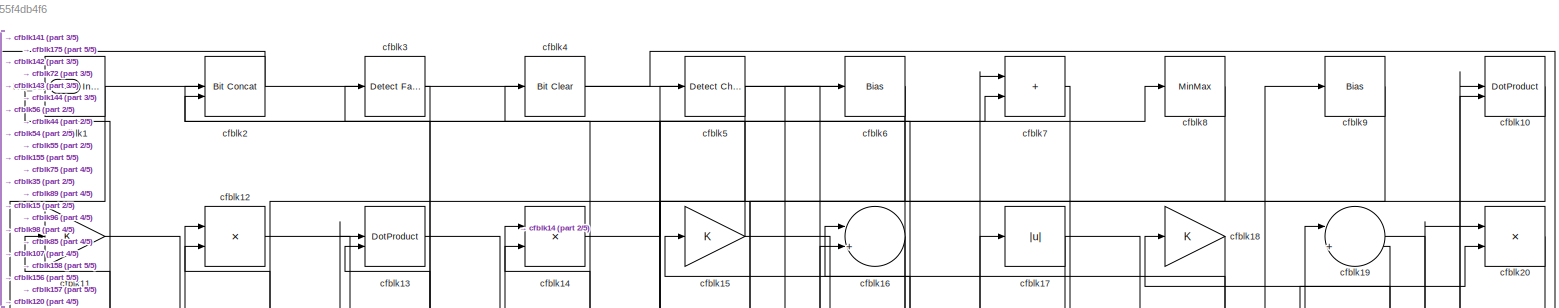
[diagram: root canvas - part 1/5, full width, top band]
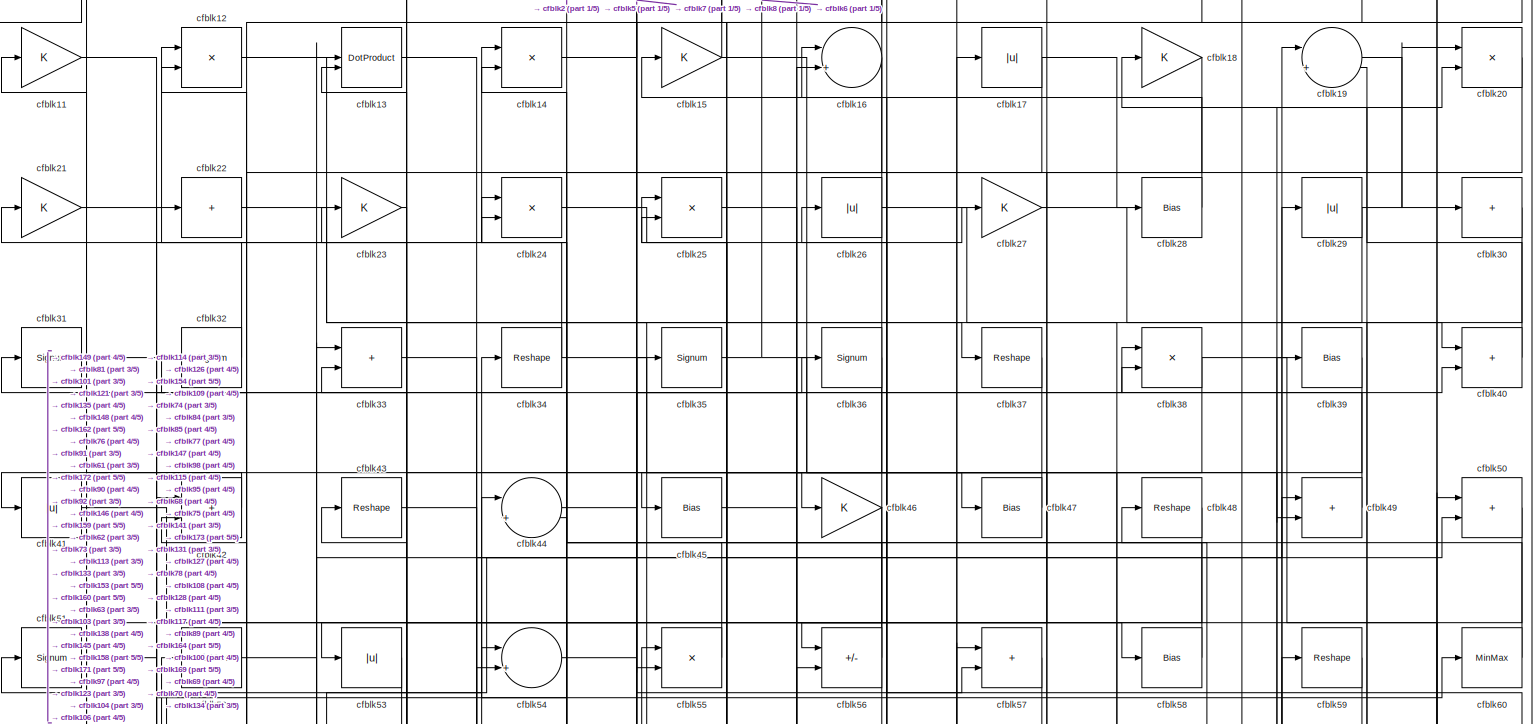
[diagram: root canvas - part 2/5, full width, top band]
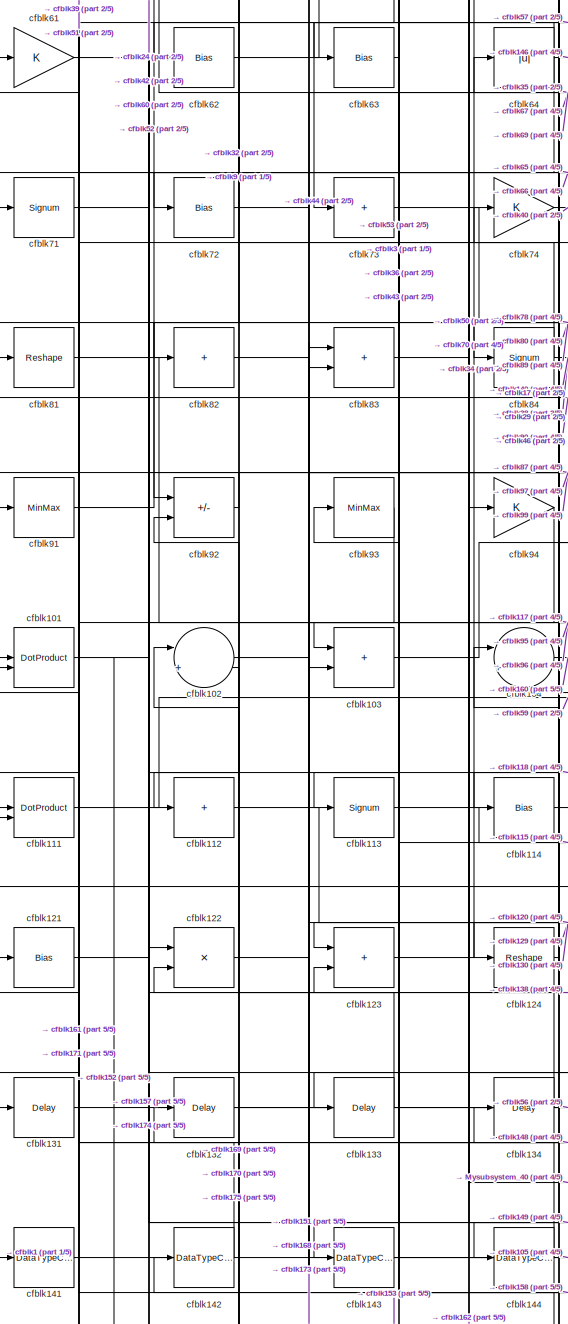
[diagram: root canvas - part 3/5, middle left region]
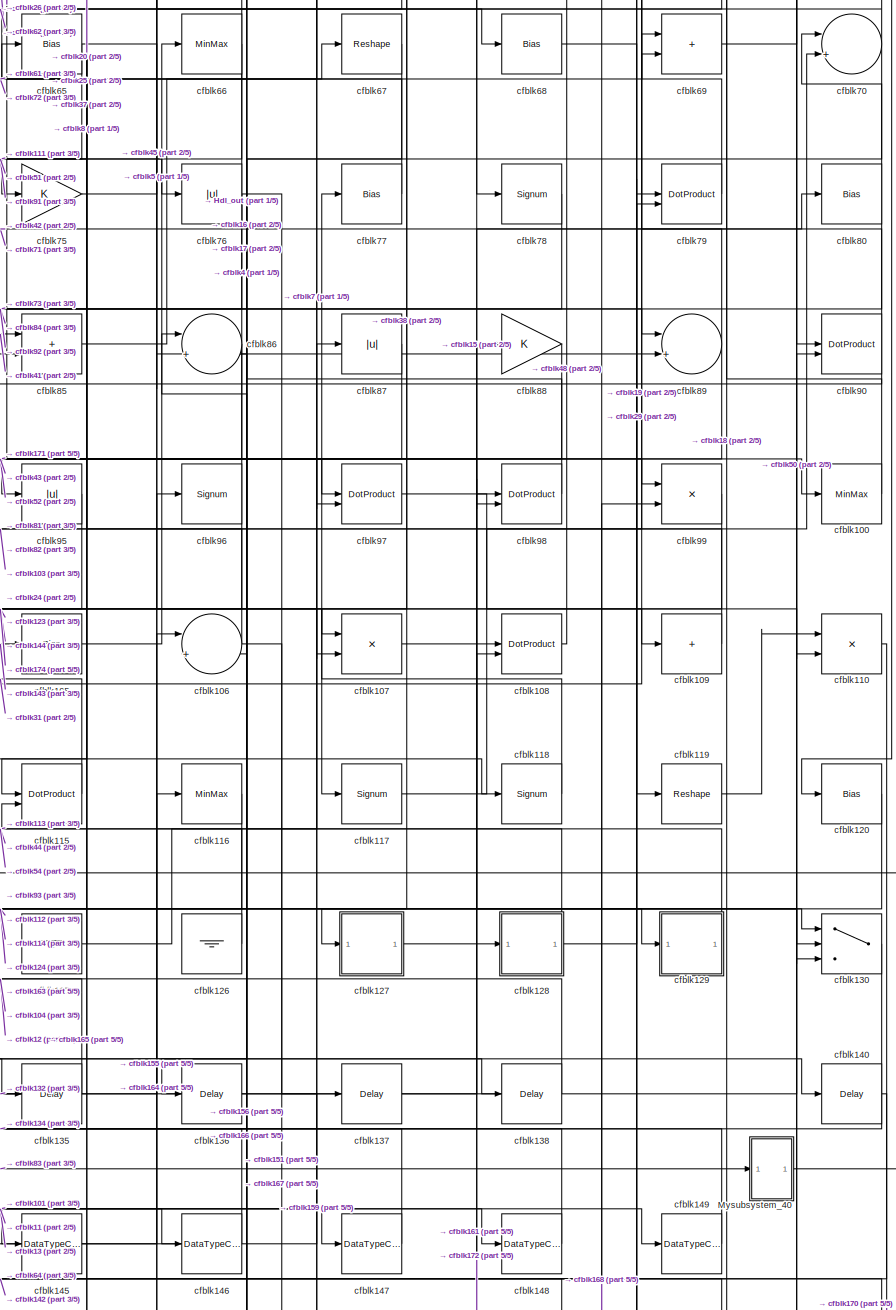
[diagram: root canvas - part 4/5, middle right region]
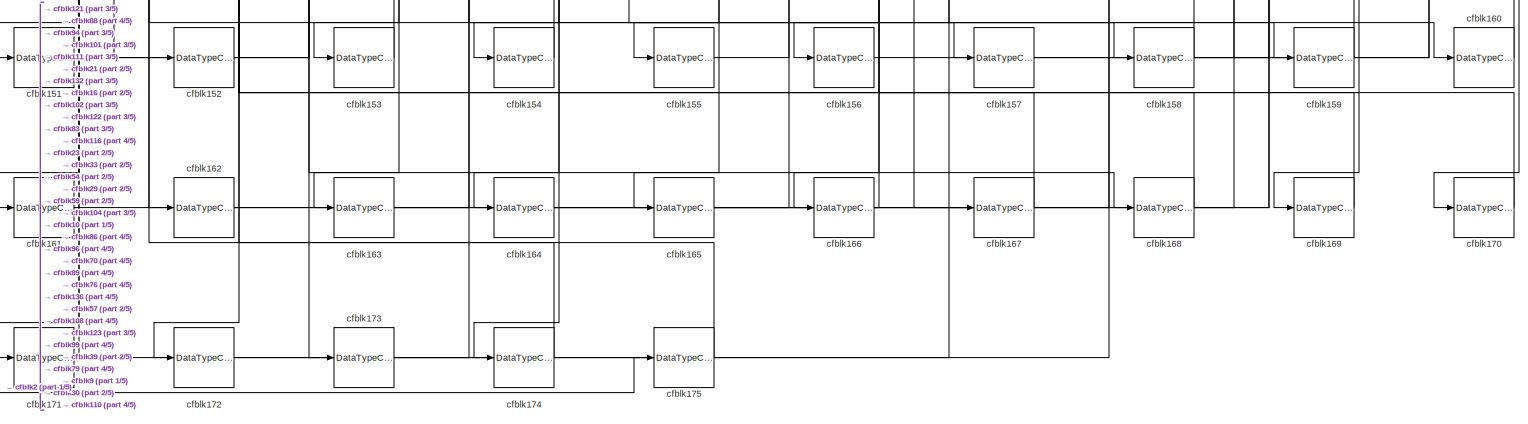
[diagram: root canvas - part 5/5, full width, bottom band]
MODEL slx_75555f4db4f6
KIND model
CONFIG AbsTol = auto
CONFIG EnableMultiTasking = off
CONFIG FixedStep = auto
CONFIG MaxStep = auto
CONFIG MinStep = auto
CONFIG RelTol = 1e-3
CONFIG SampleTimeConstraint = Unconstrained
CONFIG SolverName = VariableStepAuto
CONFIG StartTime = 0.0
CONFIG StopTime = 10.0
BLOCK [Outport] Hdl_out
  OutDataTypeStr = uint8
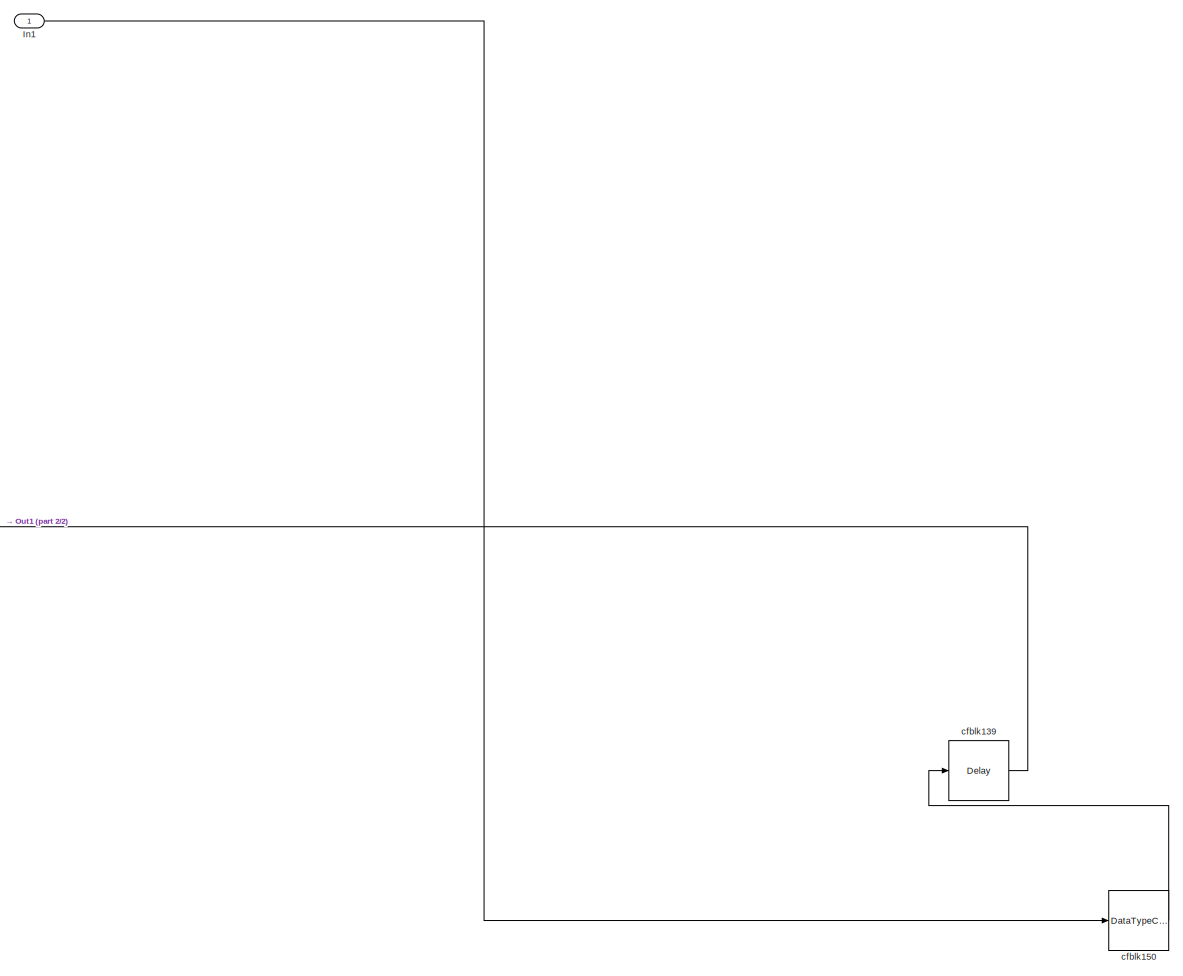
[diagram: Mysubsystem_40 - part 1/2, most of the canvas]
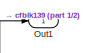
[diagram: Mysubsystem_40 - part 2/2, middle left region]
BLOCK [SubSystem] Mysubsystem_40
  RTWFcnName = Mysubsystem_40
  RTWFcnNameOpts = User specified
  RTWFileNameOpts = Use function name
  RTWSystemCode = Reusable function
  TreatAsAtomicUnit = on
BLOCK [Inport] Mysubsystem_40/In1
BLOCK [Outport] Mysubsystem_40/Out1
BLOCK [Delay] Mysubsystem_40/cfblk139
  InputPortMap = u0
  SampleTime = 1
BLOCK [DataTypeConversion] Mysubsystem_40/cfblk150
  OutDataTypeStr = uint8
  RndMeth = Floor
  SaturateOnIntegerOverflow = off
BLOCK [Reference] cfblk1  REF=simulink/Logic and Bit
Operations/Detect
Increase
  LibrarySourceBlock = hdlsllib/Logic and Bit\nOperations/Detect\nIncrease
  SourceBlock = simulink/Logic and Bit\nOperations/Detect\nIncrease
  SourceType = Detect Increase
BLOCK [DotProduct] cfblk10
  OutDataTypeStr = uint8
BLOCK [MinMax] cfblk100
  OutDataTypeStr = uint8
BLOCK [DotProduct] cfblk101
  OutDataTypeStr = uint8
BLOCK [Sum] cfblk102
  Inputs = |++
  OutDataTypeStr = uint8
BLOCK [Sum] cfblk103
  IconShape = rectangular
  OutDataTypeStr = uint8
BLOCK [Sum] cfblk104
  Inputs = |++
  OutDataTypeStr = uint8
BLOCK [Bias] cfblk105
  Bias = 0.0
  SaturateOnIntegerOverflow = off
BLOCK [Sum] cfblk106
  Inputs = |++
  OutDataTypeStr = uint8
BLOCK [Product] cfblk107
  Inputs = */
  OutDataTypeStr = uint8
  RndMeth = Zero
  SaturateOnIntegerOverflow = on
BLOCK [DotProduct] cfblk108
  OutDataTypeStr = uint8
BLOCK [Sum] cfblk109
  IconShape = rectangular
  Inputs = +
  OutDataTypeStr = uint8
BLOCK [Gain] cfblk11
  OutDataTypeStr = uint8
BLOCK [Product] cfblk110
  Inputs = */
  OutDataTypeStr = uint8
  RndMeth = Zero
  SaturateOnIntegerOverflow = on
BLOCK [DotProduct] cfblk111
  OutDataTypeStr = uint8
BLOCK [Sum] cfblk112
  IconShape = rectangular
  Inputs = +
  OutDataTypeStr = uint8
BLOCK [Signum] cfblk113
BLOCK [Bias] cfblk114
  Bias = 0.0
  SaturateOnIntegerOverflow = off
BLOCK [DotProduct] cfblk115
  OutDataTypeStr = uint8
BLOCK [MinMax] cfblk116
  OutDataTypeStr = uint8
BLOCK [Signum] cfblk117
BLOCK [Signum] cfblk118
BLOCK [Reshape] cfblk119
BLOCK [Product] cfblk12
  Inputs = */
  OutDataTypeStr = uint8
  RndMeth = Zero
  SaturateOnIntegerOverflow = on
BLOCK [Bias] cfblk120
  Bias = 0.0
  SaturateOnIntegerOverflow = off
BLOCK [Bias] cfblk121
  Bias = 0.0
  SaturateOnIntegerOverflow = off
BLOCK [Product] cfblk122
  Inputs = */
  OutDataTypeStr = uint8
  RndMeth = Zero
  SaturateOnIntegerOverflow = on
BLOCK [Sum] cfblk123
  IconShape = rectangular
  OutDataTypeStr = uint8
BLOCK [Reshape] cfblk124
BLOCK [Ground] cfblk125
BLOCK [Ground] cfblk126
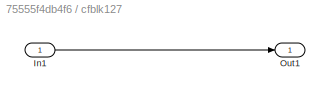
BLOCK [SubSystem] cfblk127
  LibrarySourceBlock = hdlsllib/Ports &\nSubsystems/Subsystem
BLOCK [Inport] cfblk127/In1
BLOCK [Outport] cfblk127/Out1
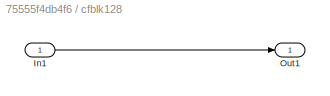
BLOCK [SubSystem] cfblk128
  LibrarySourceBlock = hdlsllib/Ports &\nSubsystems/Subsystem
BLOCK [Inport] cfblk128/In1
BLOCK [Outport] cfblk128/Out1
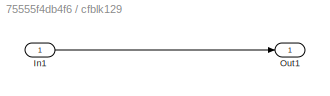
BLOCK [SubSystem] cfblk129
  LibrarySourceBlock = hdlsllib/Ports &\nSubsystems/Subsystem
BLOCK [Inport] cfblk129/In1
BLOCK [Outport] cfblk129/Out1
BLOCK [DotProduct] cfblk13
  OutDataTypeStr = uint8
BLOCK [Switch] cfblk130
  InputSameDT = off
  OutDataTypeStr = uint8
  SaturateOnIntegerOverflow = off
BLOCK [Delay] cfblk131
  InputPortMap = u0
  SampleTime = 1
BLOCK [Delay] cfblk132
  InputPortMap = u0
  SampleTime = 1
BLOCK [Delay] cfblk133
  InputPortMap = u0
  SampleTime = 1
BLOCK [Delay] cfblk134
  InputPortMap = u0
  SampleTime = 1
BLOCK [Delay] cfblk135
  InputPortMap = u0
  SampleTime = 1
BLOCK [Delay] cfblk136
  InputPortMap = u0
  SampleTime = 1
BLOCK [Delay] cfblk137
  InputPortMap = u0
  SampleTime = 1
BLOCK [Delay] cfblk138
  InputPortMap = u0
  SampleTime = 1
BLOCK [Product] cfblk14
  Inputs = */
  OutDataTypeStr = uint8
  RndMeth = Zero
  SaturateOnIntegerOverflow = on
BLOCK [Delay] cfblk140
  InputPortMap = u0
  SampleTime = 1
BLOCK [DataTypeConversion] cfblk141
  OutDataTypeStr = uint8
  RndMeth = Floor
  SaturateOnIntegerOverflow = off
BLOCK [DataTypeConversion] cfblk142
  OutDataTypeStr = uint8
  RndMeth = Floor
  SaturateOnIntegerOverflow = off
BLOCK [DataTypeConversion] cfblk143
  OutDataTypeStr = uint8
  RndMeth = Floor
  SaturateOnIntegerOverflow = off
BLOCK [DataTypeConversion] cfblk144
  OutDataTypeStr = uint8
  RndMeth = Floor
  SaturateOnIntegerOverflow = off
BLOCK [DataTypeConversion] cfblk145
  OutDataTypeStr = uint8
  RndMeth = Floor
  SaturateOnIntegerOverflow = off
BLOCK [DataTypeConversion] cfblk146
  OutDataTypeStr = uint8
  RndMeth = Floor
  SaturateOnIntegerOverflow = off
BLOCK [DataTypeConversion] cfblk147
  OutDataTypeStr = uint8
  RndMeth = Floor
  SaturateOnIntegerOverflow = off
BLOCK [DataTypeConversion] cfblk148
  OutDataTypeStr = uint8
  RndMeth = Floor
  SaturateOnIntegerOverflow = off
BLOCK [DataTypeConversion] cfblk149
  OutDataTypeStr = uint8
  RndMeth = Floor
  SaturateOnIntegerOverflow = off
BLOCK [Gain] cfblk15
  OutDataTypeStr = uint8
BLOCK [DataTypeConversion] cfblk151
  OutDataTypeStr = uint8
  RndMeth = Floor
  SaturateOnIntegerOverflow = off
BLOCK [DataTypeConversion] cfblk152
  OutDataTypeStr = uint8
  RndMeth = Floor
  SaturateOnIntegerOverflow = off
BLOCK [DataTypeConversion] cfblk153
  OutDataTypeStr = uint8
  RndMeth = Floor
  SaturateOnIntegerOverflow = off
BLOCK [DataTypeConversion] cfblk154
  OutDataTypeStr = uint8
  RndMeth = Floor
  SaturateOnIntegerOverflow = off
BLOCK [DataTypeConversion] cfblk155
  OutDataTypeStr = uint8
  RndMeth = Floor
  SaturateOnIntegerOverflow = off
BLOCK [DataTypeConversion] cfblk156
  OutDataTypeStr = uint8
  RndMeth = Floor
  SaturateOnIntegerOverflow = off
BLOCK [DataTypeConversion] cfblk157
  OutDataTypeStr = uint8
  RndMeth = Floor
  SaturateOnIntegerOverflow = off
BLOCK [DataTypeConversion] cfblk158
  OutDataTypeStr = uint8
  RndMeth = Floor
  SaturateOnIntegerOverflow = off
BLOCK [DataTypeConversion] cfblk159
  OutDataTypeStr = uint8
  RndMeth = Floor
  SaturateOnIntegerOverflow = off
BLOCK [Sum] cfblk16
  Inputs = |++
  OutDataTypeStr = uint8
BLOCK [DataTypeConversion] cfblk160
  OutDataTypeStr = uint8
  RndMeth = Floor
  SaturateOnIntegerOverflow = off
BLOCK [DataTypeConversion] cfblk161
  OutDataTypeStr = uint8
  RndMeth = Floor
  SaturateOnIntegerOverflow = off
BLOCK [DataTypeConversion] cfblk162
  OutDataTypeStr = uint8
  RndMeth = Floor
  SaturateOnIntegerOverflow = off
BLOCK [DataTypeConversion] cfblk163
  OutDataTypeStr = uint8
  RndMeth = Floor
  SaturateOnIntegerOverflow = off
BLOCK [DataTypeConversion] cfblk164
  OutDataTypeStr = uint8
  RndMeth = Floor
  SaturateOnIntegerOverflow = off
BLOCK [DataTypeConversion] cfblk165
  OutDataTypeStr = uint8
  RndMeth = Floor
  SaturateOnIntegerOverflow = off
BLOCK [DataTypeConversion] cfblk166
  OutDataTypeStr = uint8
  RndMeth = Floor
  SaturateOnIntegerOverflow = off
BLOCK [DataTypeConversion] cfblk167
  OutDataTypeStr = uint8
  RndMeth = Floor
  SaturateOnIntegerOverflow = off
BLOCK [DataTypeConversion] cfblk168
  OutDataTypeStr = uint8
  RndMeth = Floor
  SaturateOnIntegerOverflow = off
BLOCK [DataTypeConversion] cfblk169
  OutDataTypeStr = uint8
  RndMeth = Floor
  SaturateOnIntegerOverflow = off
BLOCK [Abs] cfblk17
  OutDataTypeStr = uint8
  SaturateOnIntegerOverflow = off
BLOCK [DataTypeConversion] cfblk170
  OutDataTypeStr = uint8
  RndMeth = Floor
  SaturateOnIntegerOverflow = off
BLOCK [DataTypeConversion] cfblk171
  OutDataTypeStr = uint8
  RndMeth = Floor
  SaturateOnIntegerOverflow = off
BLOCK [DataTypeConversion] cfblk172
  OutDataTypeStr = uint8
  RndMeth = Floor
  SaturateOnIntegerOverflow = off
BLOCK [DataTypeConversion] cfblk173
  OutDataTypeStr = uint8
  RndMeth = Floor
  SaturateOnIntegerOverflow = off
BLOCK [DataTypeConversion] cfblk174
  OutDataTypeStr = uint8
  RndMeth = Floor
  SaturateOnIntegerOverflow = off
BLOCK [DataTypeConversion] cfblk175
  OutDataTypeStr = uint8
  RndMeth = Floor
  SaturateOnIntegerOverflow = off
BLOCK [Gain] cfblk18
  OutDataTypeStr = uint8
BLOCK [Sum] cfblk19
  Inputs = |++
  OutDataTypeStr = uint8
BLOCK [Reference] cfblk2  REF=hdlsllib/Logic and Bit
Operations/Bit Concat
  SourceBlock = hdlsllib/Logic and Bit\nOperations/Bit Concat
  SourceType = Bit Concat
BLOCK [Product] cfblk20
  Inputs = */
  OutDataTypeStr = uint8
  RndMeth = Zero
  SaturateOnIntegerOverflow = on
BLOCK [Gain] cfblk21
  OutDataTypeStr = uint8
BLOCK [Sum] cfblk22
  IconShape = rectangular
  Inputs = +
  OutDataTypeStr = uint8
BLOCK [Gain] cfblk23
  OutDataTypeStr = uint8
BLOCK [Product] cfblk24
  Inputs = */
  OutDataTypeStr = uint8
  RndMeth = Zero
  SaturateOnIntegerOverflow = on
BLOCK [Product] cfblk25
  Inputs = */
  OutDataTypeStr = uint8
  RndMeth = Zero
  SaturateOnIntegerOverflow = on
BLOCK [Abs] cfblk26
  OutDataTypeStr = uint8
  SaturateOnIntegerOverflow = off
BLOCK [Gain] cfblk27
  OutDataTypeStr = uint8
BLOCK [Bias] cfblk28
  Bias = 0.0
  SaturateOnIntegerOverflow = off
BLOCK [Abs] cfblk29
  OutDataTypeStr = uint8
  SaturateOnIntegerOverflow = off
BLOCK [Reference] cfblk3  REF=hdlsllib/Logic and Bit
Operations/Detect Fall
Nonpositive
  SourceBlock = hdlsllib/Logic and Bit\nOperations/Detect Fall\nNonpositive
  SourceType = Detect Fall Nonpositive
BLOCK [Sum] cfblk30
  IconShape = rectangular
  Inputs = +
  OutDataTypeStr = uint8
BLOCK [Signum] cfblk31
BLOCK [Signum] cfblk32
BLOCK [Sum] cfblk33
  IconShape = rectangular
  OutDataTypeStr = uint8
BLOCK [Reshape] cfblk34
BLOCK [Signum] cfblk35
BLOCK [Signum] cfblk36
BLOCK [Reshape] cfblk37
BLOCK [Product] cfblk38
  Inputs = */
  OutDataTypeStr = uint8
  RndMeth = Zero
  SaturateOnIntegerOverflow = on
BLOCK [Bias] cfblk39
  Bias = 0.0
  SaturateOnIntegerOverflow = off
BLOCK [Reference] cfblk4  REF=simulink/Logic and Bit
Operations/Bit Clear
  LibrarySourceBlock = hdlsllib/Logic and Bit\nOperations/Bit Clear
  SourceBlock = simulink/Logic and Bit\nOperations/Bit Clear
  SourceType = Bit Clear
BLOCK [Sum] cfblk40
  IconShape = rectangular
  OutDataTypeStr = uint8
BLOCK [Abs] cfblk41
  OutDataTypeStr = uint8
  SaturateOnIntegerOverflow = off
BLOCK [Sum] cfblk42
  IconShape = rectangular
  OutDataTypeStr = uint8
BLOCK [Reshape] cfblk43
BLOCK [Sum] cfblk44
  Inputs = |++
  OutDataTypeStr = uint8
BLOCK [Bias] cfblk45
  Bias = 0.0
  SaturateOnIntegerOverflow = off
BLOCK [Gain] cfblk46
  OutDataTypeStr = uint8
BLOCK [Bias] cfblk47
  Bias = 0.0
  SaturateOnIntegerOverflow = off
BLOCK [Reshape] cfblk48
BLOCK [Sum] cfblk49
  IconShape = rectangular
  OutDataTypeStr = uint8
BLOCK [Reference] cfblk5  REF=simulink/Logic and Bit
Operations/Detect
Change
  LibrarySourceBlock = hdlsllib/Logic and Bit\nOperations/Detect\nChange
  SourceBlock = simulink/Logic and Bit\nOperations/Detect\nChange
  SourceType = Detect Change
BLOCK [Sum] cfblk50
  IconShape = rectangular
  OutDataTypeStr = uint8
BLOCK [Signum] cfblk51
BLOCK [MinMax] cfblk52
  OutDataTypeStr = uint8
BLOCK [Abs] cfblk53
  OutDataTypeStr = uint8
  SaturateOnIntegerOverflow = off
BLOCK [Sum] cfblk54
  Inputs = |++
  OutDataTypeStr = uint8
BLOCK [Product] cfblk55
  Inputs = */
  OutDataTypeStr = uint8
  RndMeth = Zero
  SaturateOnIntegerOverflow = on
BLOCK [Sum] cfblk56
  IconShape = rectangular
  Inputs = +-
  OutDataTypeStr = uint8
BLOCK [Sum] cfblk57
  IconShape = rectangular
  OutDataTypeStr = uint8
BLOCK [Bias] cfblk58
  Bias = 0.0
  SaturateOnIntegerOverflow = off
BLOCK [Reshape] cfblk59
BLOCK [Bias] cfblk6
  Bias = 0.0
  SaturateOnIntegerOverflow = off
BLOCK [MinMax] cfblk60
  OutDataTypeStr = uint8
BLOCK [Gain] cfblk61
  OutDataTypeStr = uint8
BLOCK [Bias] cfblk62
  Bias = 0.0
  SaturateOnIntegerOverflow = off
BLOCK [Bias] cfblk63
  Bias = 0.0
  SaturateOnIntegerOverflow = off
BLOCK [Abs] cfblk64
  OutDataTypeStr = uint8
  SaturateOnIntegerOverflow = off
BLOCK [Bias] cfblk65
  Bias = 0.0
  SaturateOnIntegerOverflow = off
BLOCK [MinMax] cfblk66
  OutDataTypeStr = uint8
BLOCK [Reshape] cfblk67
BLOCK [Bias] cfblk68
  Bias = 0.0
  SaturateOnIntegerOverflow = off
BLOCK [Sum] cfblk69
  IconShape = rectangular
  OutDataTypeStr = uint8
BLOCK [Sum] cfblk7
  IconShape = rectangular
  OutDataTypeStr = uint8
BLOCK [Sum] cfblk70
  Inputs = |++
  OutDataTypeStr = uint8
BLOCK [Signum] cfblk71
BLOCK [Bias] cfblk72
  Bias = 0.0
  SaturateOnIntegerOverflow = off
BLOCK [Sum] cfblk73
  IconShape = rectangular
  Inputs = +
  OutDataTypeStr = uint8
BLOCK [Gain] cfblk74
  OutDataTypeStr = uint8
BLOCK [Gain] cfblk75
  OutDataTypeStr = uint8
BLOCK [Abs] cfblk76
  OutDataTypeStr = uint8
  SaturateOnIntegerOverflow = off
BLOCK [Bias] cfblk77
  Bias = 0.0
  SaturateOnIntegerOverflow = off
BLOCK [Signum] cfblk78
BLOCK [DotProduct] cfblk79
  OutDataTypeStr = uint8
BLOCK [MinMax] cfblk8
  OutDataTypeStr = uint8
BLOCK [Bias] cfblk80
  Bias = 0.0
  SaturateOnIntegerOverflow = off
BLOCK [Reshape] cfblk81
BLOCK [Sum] cfblk82
  IconShape = rectangular
  Inputs = +
  OutDataTypeStr = uint8
BLOCK [Sum] cfblk83
  IconShape = rectangular
  OutDataTypeStr = uint8
BLOCK [Signum] cfblk84
BLOCK [Sum] cfblk85
  IconShape = rectangular
  OutDataTypeStr = uint8
BLOCK [Sum] cfblk86
  Inputs = |++
  OutDataTypeStr = uint8
BLOCK [Abs] cfblk87
  OutDataTypeStr = uint8
  SaturateOnIntegerOverflow = off
BLOCK [Gain] cfblk88
  OutDataTypeStr = uint8
BLOCK [Sum] cfblk89
  Inputs = |++
  OutDataTypeStr = uint8
BLOCK [Bias] cfblk9
  Bias = 0.0
  SaturateOnIntegerOverflow = off
BLOCK [DotProduct] cfblk90
  OutDataTypeStr = uint8
BLOCK [MinMax] cfblk91
  OutDataTypeStr = uint8
BLOCK [Sum] cfblk92
  IconShape = rectangular
  Inputs = +-
  OutDataTypeStr = uint8
BLOCK [MinMax] cfblk93
  OutDataTypeStr = uint8
BLOCK [Gain] cfblk94
  OutDataTypeStr = uint8
BLOCK [Abs] cfblk95
  OutDataTypeStr = uint8
  SaturateOnIntegerOverflow = off
BLOCK [Signum] cfblk96
BLOCK [DotProduct] cfblk97
  OutDataTypeStr = uint8
BLOCK [DotProduct] cfblk98
  OutDataTypeStr = uint8
BLOCK [Product] cfblk99
  Inputs = */
  OutDataTypeStr = uint8
  RndMeth = Zero
  SaturateOnIntegerOverflow = on
LINE Mysubsystem_40/In1:1 -> Mysubsystem_40/cfblk150:1
LINE Mysubsystem_40/cfblk139:1 -> Mysubsystem_40/Out1:1
LINE Mysubsystem_40/cfblk150:1 -> Mysubsystem_40/cfblk139:1
LINE Mysubsystem_40:1 -> cfblk101:1
LINE cfblk100:1 -> cfblk18:1
NET cfblk101:1 -> cfblk149:1, cfblk152:1, cfblk24:2
LINE cfblk102:1 -> cfblk168:1
NET cfblk103:1 -> cfblk50:2, cfblk70:2
LINE cfblk104:1 -> cfblk160:1
LINE cfblk105:1 -> cfblk66:1
NET cfblk106:1 -> cfblk137:1, cfblk24:1
LINE cfblk107:1 -> cfblk130:2
LINE cfblk108:1 -> cfblk48:1
LINE cfblk109:1 -> cfblk25:2
LINE cfblk10:1 -> cfblk155:1
LINE cfblk110:1 -> cfblk170:1
NET cfblk111:1 -> cfblk157:1, cfblk59:1
LINE cfblk112:1 -> cfblk130:1
LINE cfblk113:1 -> cfblk115:2
NET cfblk114:1 -> cfblk130:3, cfblk74:1
LINE cfblk115:1 -> cfblk31:1
LINE cfblk116:1 -> cfblk163:1
NET cfblk117:1 -> cfblk29:1, cfblk80:1
LINE cfblk118:1 -> cfblk77:1
LINE cfblk119:1 -> cfblk110:1
LINE cfblk11:1 -> cfblk148:1
LINE cfblk120:1 -> cfblk124:1
NET cfblk121:1 -> cfblk36:1, cfblk60:1
LINE cfblk122:1 -> cfblk173:1
LINE cfblk123:1 -> cfblk34:1
LINE cfblk124:1 -> cfblk64:1
NET cfblk125:1 -> cfblk65:1, cfblk87:1
NET cfblk126:1 -> cfblk44:2, cfblk54:1
LINE cfblk127/In1:1 -> cfblk127/Out1:1
LINE cfblk127:1 -> cfblk128:1
LINE cfblk128/In1:1 -> cfblk128/Out1:1
NET cfblk128:1 -> cfblk16:1, cfblk20:2
LINE cfblk129/In1:1 -> cfblk129/Out1:1
LINE cfblk129:1 -> cfblk93:1
LINE cfblk12:1 -> cfblk37:1
LINE cfblk130:1 -> cfblk134:1
LINE cfblk131:1 -> cfblk56:2
LINE cfblk132:1 -> cfblk90:2
LINE cfblk133:1 -> cfblk92:2
LINE cfblk134:1 -> cfblk42:1
LINE cfblk135:1 -> cfblk12:2
LINE cfblk136:1 -> cfblk159:1
LINE cfblk137:1 -> cfblk98:1
LINE cfblk138:1 -> cfblk104:1
LINE cfblk13:1 -> cfblk145:1
LINE cfblk140:1 -> cfblk142:1
LINE cfblk141:1 -> cfblk17:1
LINE cfblk142:1 -> cfblk1:1
LINE cfblk143:1 -> cfblk105:1
LINE cfblk144:1 -> cfblk3:1
LINE cfblk145:1 -> cfblk106:1
LINE cfblk146:1 -> cfblk13:1
LINE cfblk147:1 -> cfblk13:2
LINE cfblk148:1 -> cfblk61:1
LINE cfblk149:1 -> cfblk11:1
LINE cfblk14:1 -> cfblk7:2
LINE cfblk151:1 -> cfblk83:1
LINE cfblk152:1 -> cfblk83:2
LINE cfblk153:1 -> cfblk101:2
LINE cfblk154:1 -> cfblk23:1
LINE cfblk155:1 -> cfblk96:1
LINE cfblk156:1 -> cfblk10:1
LINE cfblk157:1 -> cfblk10:2
NET cfblk158:1 -> cfblk123:2, cfblk39:1, cfblk9:1
LINE cfblk159:1 -> cfblk33:1
NET cfblk15:1 -> cfblk2:2, cfblk78:1
LINE cfblk160:1 -> cfblk33:2
LINE cfblk161:1 -> cfblk108:2
LINE cfblk162:1 -> cfblk94:1
LINE cfblk163:1 -> cfblk79:1
LINE cfblk164:1 -> cfblk116:1
LINE cfblk165:1 -> cfblk79:2
LINE cfblk166:1 -> cfblk86:1
LINE cfblk167:1 -> cfblk86:2
NET cfblk168:1 -> cfblk132:1, cfblk99:2
LINE cfblk169:1 -> cfblk102:1
LINE cfblk16:1 -> cfblk172:1
LINE cfblk170:1 -> cfblk102:2
NET cfblk171:1 -> cfblk121:1, cfblk54:2
LINE cfblk172:1 -> cfblk88:1
LINE cfblk173:1 -> cfblk57:1
LINE cfblk174:1 -> cfblk122:1
LINE cfblk175:1 -> cfblk122:2
NET cfblk17:1 -> cfblk104:2, cfblk106:2, cfblk28:1
LINE cfblk18:1 -> cfblk56:1
LINE cfblk19:1 -> cfblk30:1
LINE cfblk1:1 -> cfblk141:1
LINE cfblk20:1 -> cfblk115:1
LINE cfblk21:1 -> cfblk162:1
LINE cfblk22:1 -> cfblk46:1
LINE cfblk23:1 -> cfblk153:1
LINE cfblk24:1 -> cfblk27:1
LINE cfblk25:1 -> cfblk58:1
LINE cfblk26:1 -> cfblk108:1
LINE cfblk27:1 -> cfblk40:1
LINE cfblk28:1 -> cfblk15:1
NET cfblk29:1 -> cfblk103:1, cfblk154:1, cfblk20:1
LINE cfblk2:1 -> cfblk175:1
LINE cfblk30:1 -> cfblk169:1
LINE cfblk31:1 -> cfblk135:1
LINE cfblk32:1 -> cfblk12:1
LINE cfblk33:1 -> cfblk158:1
NET cfblk34:1 -> cfblk147:1, cfblk14:2, cfblk98:2
NET cfblk35:1 -> cfblk47:1, cfblk49:2, cfblk6:1
LINE cfblk36:1 -> cfblk113:1
LINE cfblk37:1 -> cfblk95:1
NET cfblk38:1 -> cfblk127:1, cfblk90:1
LINE cfblk39:1 -> cfblk81:1
LINE cfblk3:1 -> cfblk143:1
LINE cfblk40:1 -> cfblk19:2
NET cfblk41:1 -> cfblk109:1, cfblk85:1
LINE cfblk42:1 -> cfblk41:1
NET cfblk43:1 -> cfblk138:1, cfblk97:2
LINE cfblk44:1 -> cfblk8:1
LINE cfblk45:1 -> cfblk68:1
NET cfblk46:1 -> cfblk111:1, cfblk114:1
LINE cfblk47:1 -> cfblk45:1
LINE cfblk48:1 -> cfblk53:1
LINE cfblk49:1 -> cfblk38:1
LINE cfblk4:1 -> cfblk120:1
LINE cfblk50:1 -> cfblk133:1
NET cfblk51:1 -> cfblk22:1, cfblk76:1
NET cfblk52:1 -> cfblk100:1, cfblk49:1
LINE cfblk53:1 -> cfblk73:1
NET cfblk54:1 -> cfblk57:2, cfblk5:1
LINE cfblk55:1 -> cfblk21:1
LINE cfblk56:1 -> cfblk2:1
LINE cfblk57:1 -> cfblk131:1
LINE cfblk58:1 -> cfblk14:1
LINE cfblk59:1 -> cfblk164:1
NET cfblk5:1 -> cfblk85:2, cfblk89:2
LINE cfblk60:1 -> cfblk25:1
NET cfblk61:1 -> cfblk35:1, cfblk69:2
LINE cfblk62:1 -> cfblk44:1
LINE cfblk63:1 -> cfblk43:1
NET cfblk64:1 -> cfblk146:1, cfblk63:1, cfblk82:1
NET cfblk65:1 -> cfblk107:2, cfblk111:2
LINE cfblk66:1 -> cfblk91:1
LINE cfblk67:1 -> cfblk136:1
LINE cfblk68:1 -> cfblk119:1
LINE cfblk69:1 -> cfblk50:1
LINE cfblk6:1 -> cfblk55:2
NET cfblk70:1 -> cfblk156:1, cfblk26:1, cfblk62:1
LINE cfblk71:1 -> cfblk118:1
NET cfblk72:1 -> cfblk129:1, cfblk67:1
LINE cfblk73:1 -> cfblk89:1
LINE cfblk74:1 -> cfblk40:2
LINE cfblk75:1 -> cfblk16:2
NET cfblk76:1 -> cfblk151:1, cfblk167:1
LINE cfblk77:1 -> cfblk55:1
LINE cfblk78:1 -> cfblk92:1
LINE cfblk79:1 -> cfblk69:1
LINE cfblk7:1 -> cfblk107:1
NET cfblk80:1 -> cfblk70:1, cfblk84:1
NET cfblk81:1 -> cfblk117:1, cfblk99:1
LINE cfblk82:1 -> cfblk97:1
LINE cfblk83:1 -> Mysubsystem_40:1
NET cfblk84:1 -> cfblk140:1, cfblk38:2, cfblk51:1
LINE cfblk85:1 -> cfblk7:1
LINE cfblk86:1 -> cfblk165:1
LINE cfblk87:1 -> cfblk112:1
LINE cfblk88:1 -> cfblk171:1
NET cfblk89:1 -> cfblk166:1, cfblk19:1
LINE cfblk8:1 -> cfblk75:1
NET cfblk90:1 -> cfblk42:2, cfblk71:1
LINE cfblk91:1 -> cfblk52:1
LINE cfblk92:1 -> cfblk32:1
LINE cfblk93:1 -> cfblk103:2
LINE cfblk94:1 -> cfblk161:1
LINE cfblk95:1 -> cfblk144:1
NET cfblk96:1 -> Hdl_out:1, cfblk123:1
LINE cfblk97:1 -> cfblk110:2
LINE cfblk98:1 -> cfblk4:1
LINE cfblk99:1 -> cfblk174:1
LINE cfblk9:1 -> cfblk72:1
note: NET lines group one-source signal fan-out (src -> all destinations, sorted); 1:1 wires keep LINE
